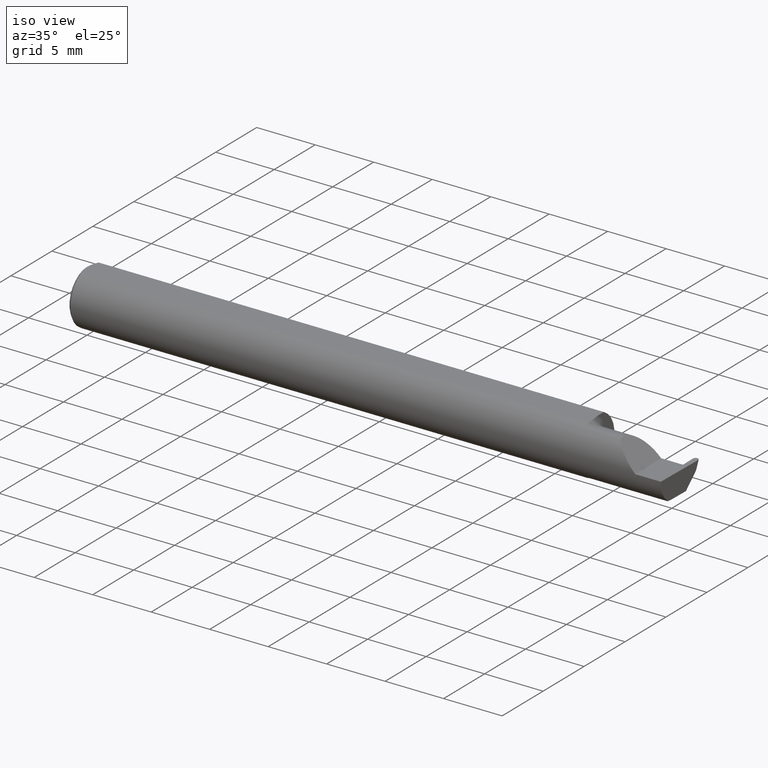
[diagram: clean part render]
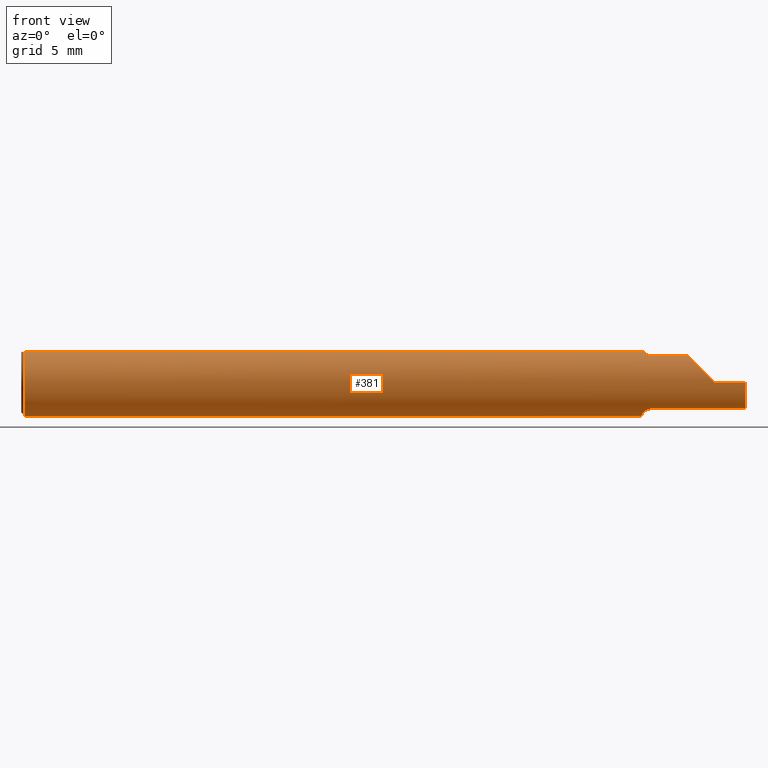
[diagram: tour spotlight — one face highlighted and labeled with its STEP entity id]
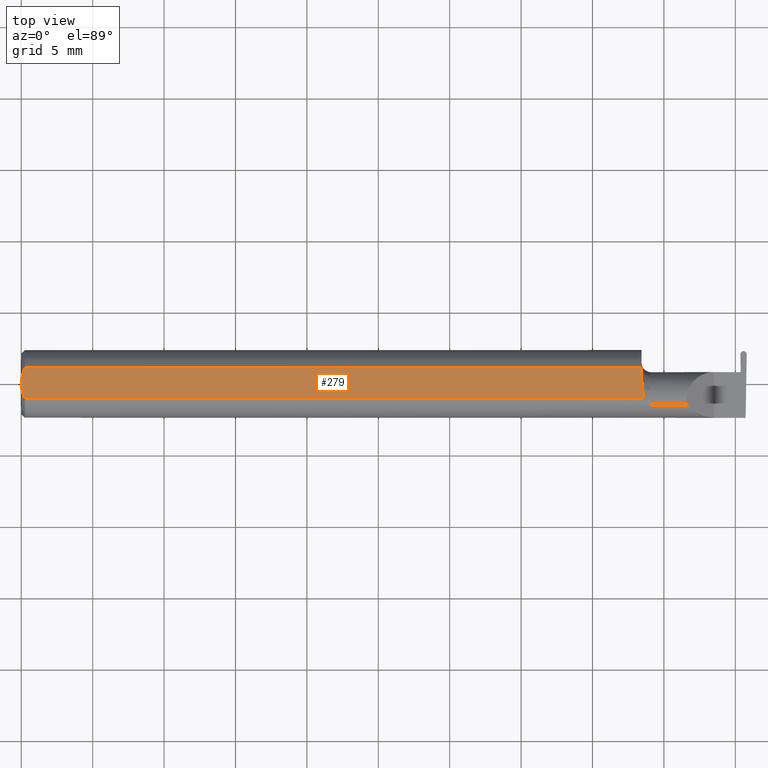
[diagram: tour spotlight — one face highlighted and labeled with its STEP entity id]
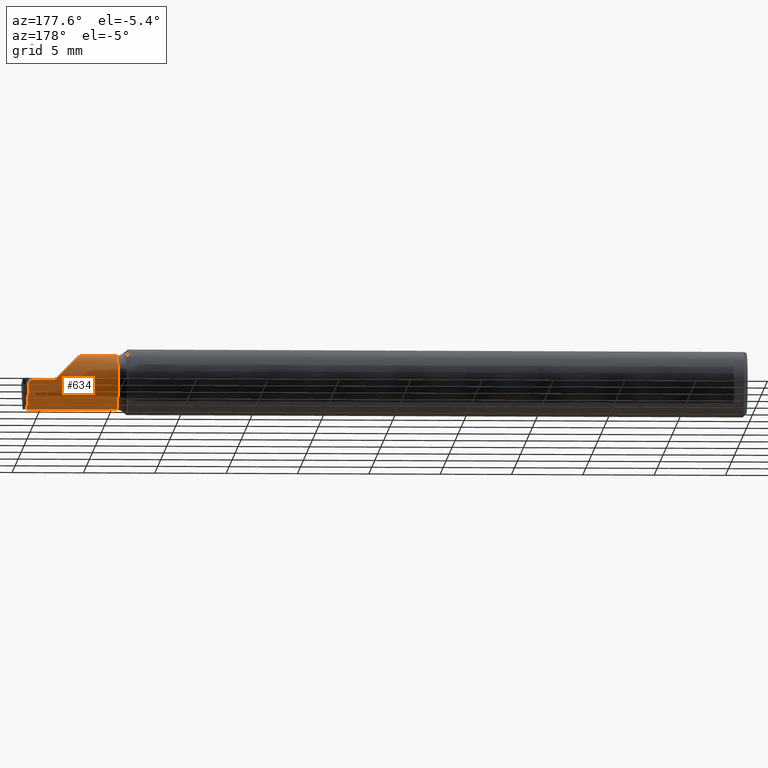
[diagram: tour spotlight — one face highlighted and labeled with its STEP entity id]
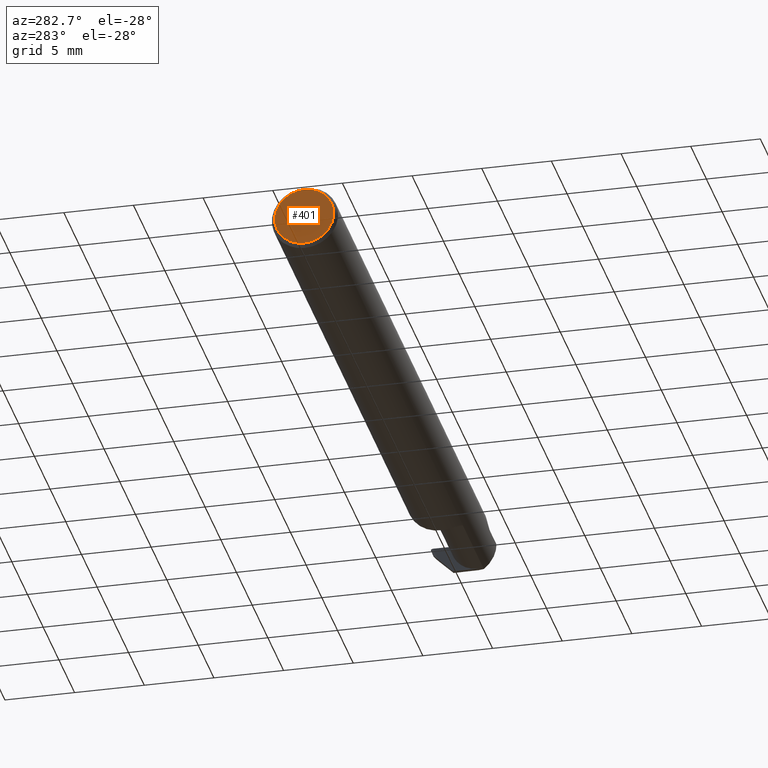
[diagram: tour spotlight — one face highlighted and labeled with its STEP entity id]
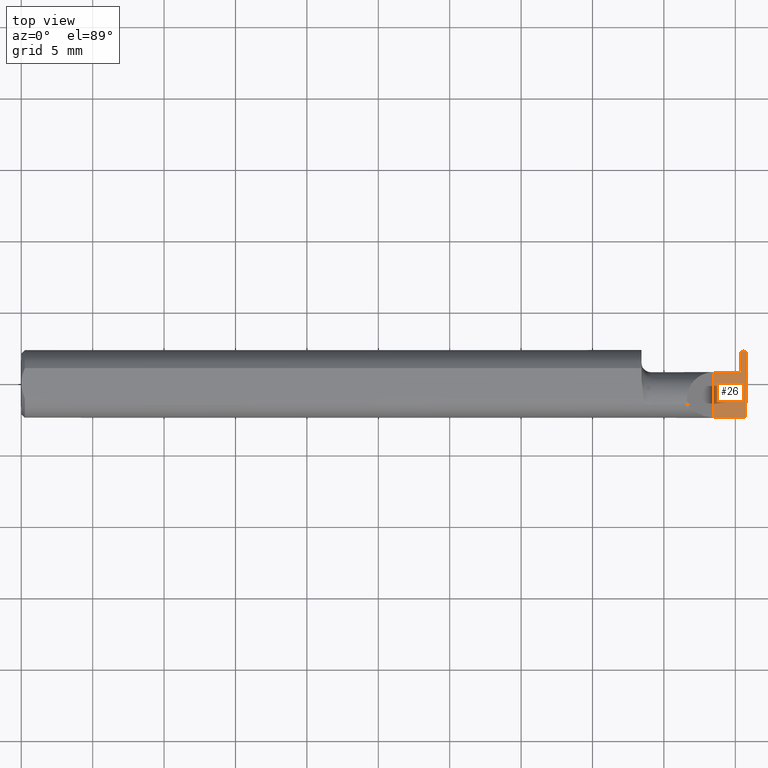
[diagram: tour spotlight — one face highlighted and labeled with its STEP entity id]
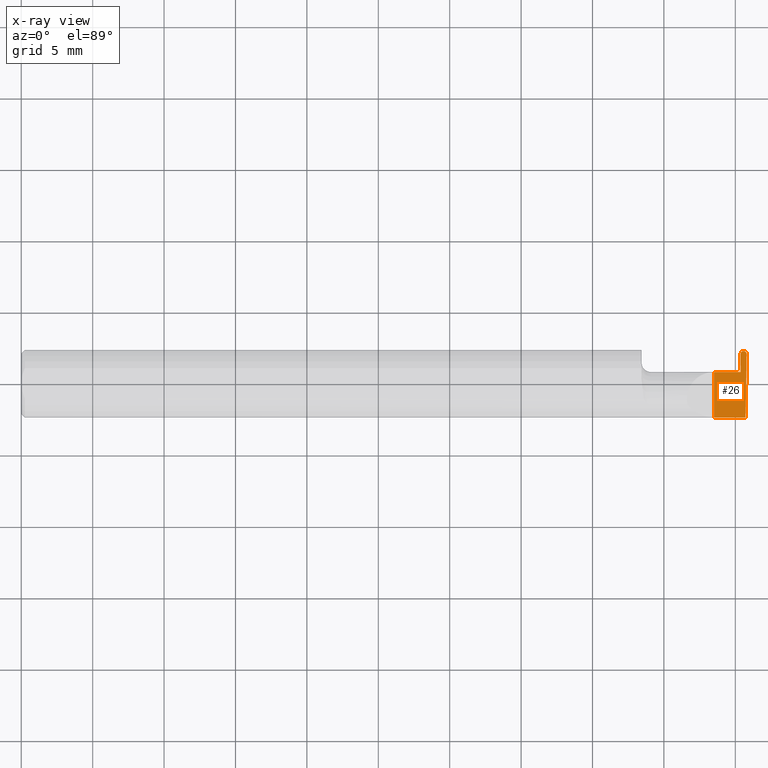
[diagram: x-ray of the same camera — body ghosted, this tour face saturated]
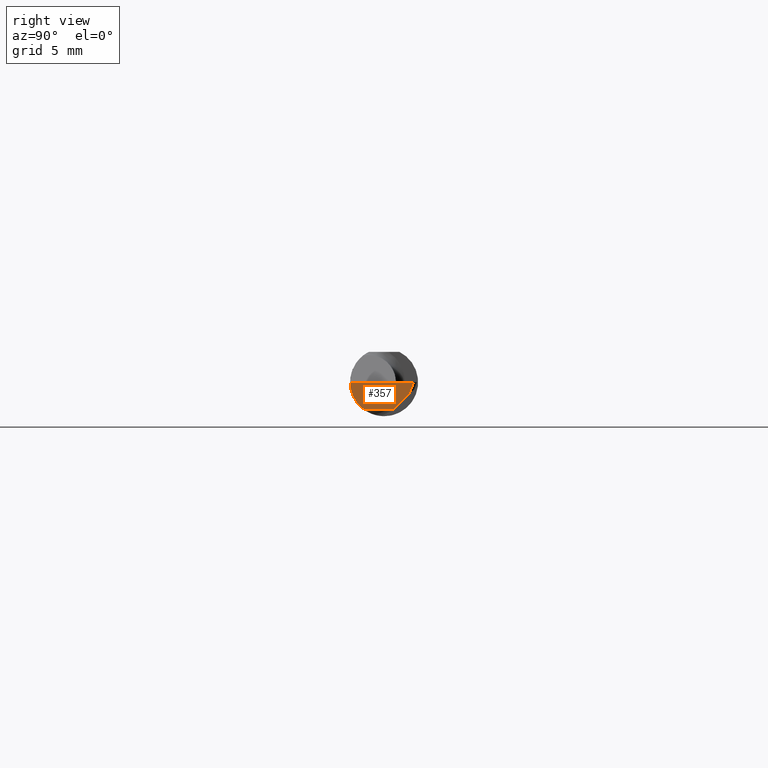
[diagram: tour spotlight — one face highlighted and labeled with its STEP entity id]
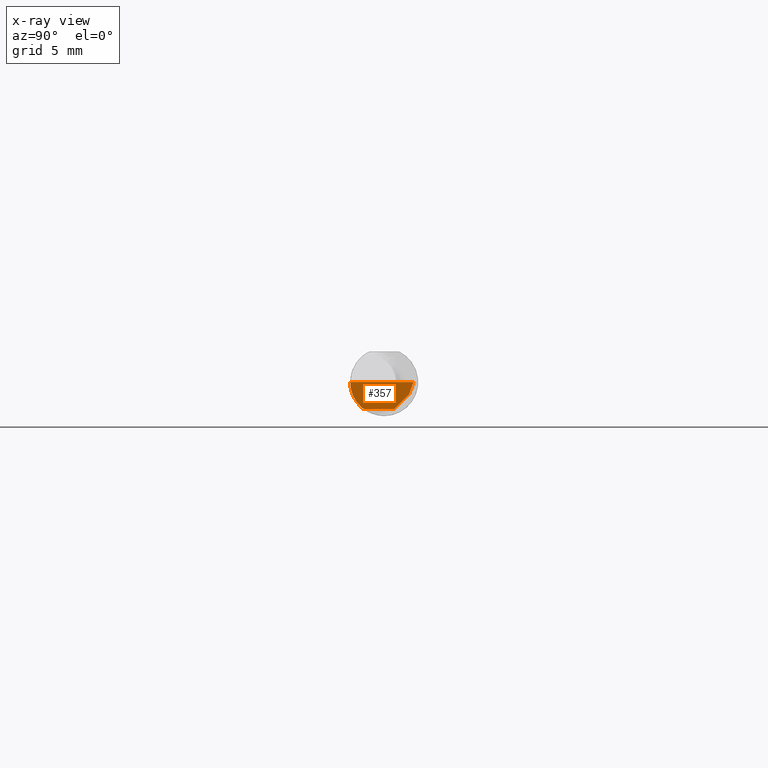
[diagram: x-ray of the same camera — body ghosted, this tour face saturated]
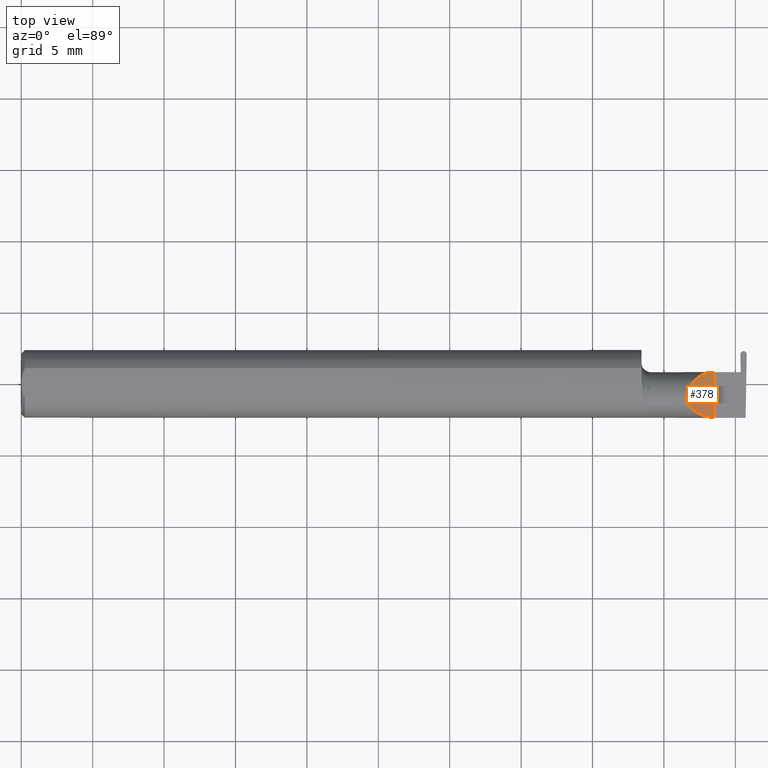
[diagram: tour spotlight — one face highlighted and labeled with its STEP entity id]
A machine part: a face-by-face anatomy tour. The part has 19 B-rep faces; the first image is the clean iso view, then the 7 largest visible faces are spotlighted one at a time (largest first), each with its STEP entity span.

Face 1 — front view, entity #381. In plain terms, the highlighted cylindrical surface (edge-blend (fillet) strip) has radius 2.3774 mm, axis along (-1, -0, -0).
Definition (entity closure, byte-faithful):
#1 = DIRECTION ( 'NONE',  ( 1.000000000000000000, 1.566532321245610297E-16, 0.000000000000000000 ) ) ;
#10 = CARTESIAN_POINT ( 'NONE',  ( 1.994999172194938941, -0.05810704225352099350, -0.07337936794867837287 ) ) ;
#13 = CARTESIAN_POINT ( 'NONE',  ( 0.000000000000000000, -0.04209513035969864037, 0.08359999999999988274 ) ) ;
#15 = CARTESIAN_POINT ( 'NONE',  ( 1.716129652885479473, -0.04209513035970120776, 0.08359999999999991049 ) ) ;
#19 = CARTESIAN_POINT ( 'NONE',  ( 0.000000000000000000, 0.04209513035969864037, 0.08359999999999988274 ) ) ;
#20 = LINE ( 'NONE', #13, #125 ) ;
#27 = CARTESIAN_POINT ( 'NONE',  ( 1.994999172194938941, -0.05810704225352099350, -0.07337936794867837287 ) ) ;
#30 = VECTOR ( 'NONE', #188, 39.37007874015748143 ) ;
#32 = VERTEX_POINT ( 'NONE', #699 ) ;
#48 = CARTESIAN_POINT ( 'NONE',  ( 0.000000000000000000, 0.000000000000000000, 0.000000000000000000 ) ) ;
#49 = ORIENTED_EDGE ( 'NONE', *, *, #583, .F. ) ;
#50 = CARTESIAN_POINT ( 'NONE',  ( 1.732603832840146074, -0.05810704225352093799, 0.07337936794867844226 ) ) ;
#56 = EDGE_CURVE ( 'NONE', #547, #32, #437, .T. ) ;
#58 = CARTESIAN_POINT ( 'NONE',  ( 1.734999999999999876, -0.05810704225352093799, 0.07337936794867844226 ) ) ;
#69 = CARTESIAN_POINT ( 'NONE',  ( 1.716129652885479473, -0.04209513035970120776, 0.08359999999999991049 ) ) ;
#77 = LINE ( 'NONE', #19, #30 ) ;
#97 = AXIS2_PLACEMENT_3D ( 'NONE', #376, #488, #592 ) ;
#98 = VERTEX_POINT ( 'NONE', #158 ) ;
#99 = CARTESIAN_POINT ( 'NONE',  ( 1.724565501274438972, -0.05415466354550829697, 0.07636456853488583774 ) ) ;
#100 = EDGE_CURVE ( 'NONE', #486, #236, #427, .T. ) ;
#103 = CARTESIAN_POINT ( 'NONE',  ( 1.718379054196076394, -0.04728090127810210402, -0.08090622725813383098 ) ) ;
#104 = CARTESIAN_POINT ( 'NONE',  ( 1.858740805000000051, -0.05810704225352100738, -0.07337936794867837287 ) ) ;
#106 = VECTOR ( 'NONE', #197, 39.37007874015748143 ) ;
#108 = EDGE_CURVE ( 'NONE', #298, #394, #179, .T. ) ;
#109 = ORIENTED_EDGE ( 'NONE', *, *, #232, .F. ) ;
#110 = EDGE_CURVE ( 'NONE', #399, #486, #656, .T. ) ;
#118 = ORIENTED_EDGE ( 'NONE', *, *, #684, .F. ) ;
#125 = VECTOR ( 'NONE', #235, 39.37007874015748143 ) ;
#144 = LINE ( 'NONE', #275, #682 ) ;
#145 = VERTEX_POINT ( 'NONE', #443 ) ;
#147 = CARTESIAN_POINT ( 'NONE',  ( 1.836620632051321200, -0.05810704225352120167, 0.07337936794867828960 ) ) ;
#158 = CARTESIAN_POINT ( 'NONE',  ( 1.734999999999999876, -0.05810704225352093799, 0.07337936794867844226 ) ) ;
#160 = DIRECTION ( 'NONE',  ( -1.000000000000000000, -0.000000000000000000, -0.000000000000000000 ) ) ;
#163 = EDGE_CURVE ( 'NONE', #547, #506, #454, .T. ) ;
#165 = VECTOR ( 'NONE', #532, 39.37007874015748143 ) ;
#170 = EDGE_LOOP ( 'NONE', ( #212, #461, #292, #187, #118, #631, #109, #628, #373, #49, #661, #289 ) ) ;
#179 = CIRCLE ( 'NONE', #533, 0.09360000000000001652 ) ;
#187 = ORIENTED_EDGE ( 'NONE', *, *, #604, .T. ) ;
#188 = DIRECTION ( 'NONE',  ( -1.000000000000000000, -0.000000000000000000, -0.000000000000000000 ) ) ;
#197 = DIRECTION ( 'NONE',  ( 1.000000000000000000, 1.566532321245610297E-16, 0.000000000000000000 ) ) ;
#212 = ORIENTED_EDGE ( 'NONE', *, *, #56, .F. ) ;
#217 = CARTESIAN_POINT ( 'NONE',  ( 1.709999999999999964, 0.000000000000000000, 0.000000000000000000 ) ) ;
#219 = CARTESIAN_POINT ( 'NONE',  ( 1.710000000000000631, -0.01220003991882276199, -0.09296180880970883464 ) ) ;
#222 = CARTESIAN_POINT ( 'NONE',  ( 1.734999999999999876, -0.05810704225352095881, -0.07337936794867842838 ) ) ;
#232 = EDGE_CURVE ( 'NONE', #399, #519, #20, .T. ) ;
#235 = DIRECTION ( 'NONE',  ( 1.000000000000000000, 0.000000000000000000, 0.000000000000000000 ) ) ;
#236 = VERTEX_POINT ( 'NONE', #501 ) ;
#243 = DIRECTION ( 'NONE',  ( 0.000000000000000000, 0.000000000000000000, 1.000000000000000000 ) ) ;
#255 = DIRECTION ( 'NONE',  ( -1.000000000000000000, -0.000000000000000000, -0.000000000000000000 ) ) ;
#260 = DIRECTION ( 'NONE',  ( 1.000000000000000000, 0.000000000000000000, 0.000000000000000000 ) ) ;
#269 = AXIS2_PLACEMENT_3D ( 'NONE', #595, #260, #483 ) ;
#273 = CARTESIAN_POINT ( 'NONE',  ( 1.709999999999999964, -0.006757276995305152960, -0.09335576686851605743 ) ) ;
#274 = B_SPLINE_CURVE_WITH_KNOTS ( 'NONE', 3,
 ( #222, #333, #539, #445, #389, #103, #324, #601, #640, #491, #219, #494 ),
 .UNSPECIFIED., .F., .F.,
 ( 4, 2, 2, 2, 2, 4 ),
 ( 1.968126669309073504E-07, 0.0002104342718631979539, 0.0004206717310594650376, 0.0008411466494519996388, 0.001261621567844533861, 0.001682096486237068516 ),
 .UNSPECIFIED. ) ;
#275 = CARTESIAN_POINT ( 'NONE',  ( 2.999519565323742037E-32, -0.09359999999999998876, 2.449293598294716768E-16 ) ) ;
#276 = CARTESIAN_POINT ( 'NONE',  ( 1.995925902212489556, -0.09360000000000001652, -0.02910696448121686056 ) ) ;
#289 = ORIENTED_EDGE ( 'NONE', *, *, #496, .F. ) ;
#292 = ORIENTED_EDGE ( 'NONE', *, *, #440, .T. ) ;
#296 = FACE_OUTER_BOUND ( 'NONE', #170, .T. ) ;
#298 = VERTEX_POINT ( 'NONE', #273 ) ;
#312 = CARTESIAN_POINT ( 'NONE',  ( 1.726308147845286634, -0.05549979236676334110, 0.07538081185522389760 ) ) ;
#315 = CARTESIAN_POINT ( 'NONE',  ( 1.996942494641693600, -0.09360000000000001652, 0.000000000000000000 ) ) ;
#322 =( BOUNDED_CURVE ( )  B_SPLINE_CURVE ( 3, ( #512, #520, #341, #564 ),
 .UNSPECIFIED., .F., .T. ) 
 B_SPLINE_CURVE_WITH_KNOTS ( ( 4, 4 ),
 ( 4.712388980384689674, 5.613420356061718408 ),
 .UNSPECIFIED. ) 
 CURVE ( )  GEOMETRIC_REPRESENTATION_ITEM ( )  RATIONAL_B_SPLINE_CURVE ( ( 1.000000000000000000, 0.9334817841311876530, 0.9334817841311876530, 1.000000000000000000 ) ) 
 REPRESENTATION_ITEM ( '' )  );
#324 = CARTESIAN_POINT ( 'NONE',  ( 1.716206319820904325, -0.04283575577410217439, -0.08338874798717357817 ) ) ;
#328 = CARTESIAN_POINT ( 'NONE',  ( 1.995231968854677351, -0.08092595952420823802, -0.05530971394246252809 ) ) ;
#333 = CARTESIAN_POINT ( 'NONE',  ( 1.732196475348975362, -0.05810704225352091717, -0.07337936794867841450 ) ) ;
#341 = CARTESIAN_POINT ( 'NONE',  ( 1.854690286057537163, -0.08092595952420827965, 0.05530971394246238931 ) ) ;
#367 = CARTESIAN_POINT ( 'NONE',  ( 1.717870098798738532, -0.04602557371825104909, 0.08162090280442949042 ) ) ;
#368 = VERTEX_POINT ( 'NONE', #147 ) ;
#369 = LINE ( 'NONE', #426, #106 ) ;
#373 = ORIENTED_EDGE ( 'NONE', *, *, #100, .T. ) ;
#376 = CARTESIAN_POINT ( 'NONE',  ( 0.01000000000000016674, 0.000000000000000000, 0.000000000000000000 ) ) ;
#381 = ADVANCED_FACE ( 'NONE', ( #296 ), #615, .T. ) ;
#383 = DIRECTION ( 'NONE',  ( 0.000000000000000000, 1.000000000000000000, 0.000000000000000000 ) ) ;
#389 = CARTESIAN_POINT ( 'NONE',  ( 1.723195691242755734, -0.05295078397730230285, -0.07721567059148477796 ) ) ;
#394 = VERTEX_POINT ( 'NONE', #471 ) ;
#399 = VERTEX_POINT ( 'NONE', #678 ) ;
#426 = CARTESIAN_POINT ( 'NONE',  ( 1.858740805000000051, -0.05810704225352100738, 0.07337936794867837287 ) ) ;
#427 = CIRCLE ( 'NONE', #97, 0.09360000000000001652 ) ;
#437 = LINE ( 'NONE', #104, #165 ) ;
#440 = EDGE_CURVE ( 'NONE', #506, #145, #144, .T. ) ;
#443 = CARTESIAN_POINT ( 'NONE',  ( 1.910000000000000142, -0.09360000000000005815, 1.102182119232621301E-17 ) ) ;
#445 = CARTESIAN_POINT ( 'NONE',  ( 1.725047675231717426, -0.05464443219068142871, -0.07601042893068209183 ) ) ;
#454 =( BOUNDED_CURVE ( )  B_SPLINE_CURVE ( 3, ( #10, #328, #276, #606 ),
 .UNSPECIFIED., .F., .T. ) 
 B_SPLINE_CURVE_WITH_KNOTS ( ( 4, 4 ),
 ( 0.2063001339125299927, 1.107331509589561058 ),
 .UNSPECIFIED. ) 
 CURVE ( )  GEOMETRIC_REPRESENTATION_ITEM ( )  RATIONAL_B_SPLINE_CURVE ( ( 1.000000000000000000, 0.9334817841311872089, 0.9334817841311872089, 1.000000000000000000 ) ) 
 REPRESENTATION_ITEM ( '' )  );
#461 = ORIENTED_EDGE ( 'NONE', *, *, #163, .T. ) ;
#471 = CARTESIAN_POINT ( 'NONE',  ( 1.709999999999999964, 0.04209513035969864037, 0.08359999999999988274 ) ) ;
#483 = DIRECTION ( 'NONE',  ( 0.000000000000000000, 0.000000000000000000, -1.000000000000000000 ) ) ;
#486 = VERTEX_POINT ( 'NONE', #497 ) ;
#488 = DIRECTION ( 'NONE',  ( 1.000000000000000000, 0.000000000000000000, 0.000000000000000000 ) ) ;
#491 = CARTESIAN_POINT ( 'NONE',  ( 1.710323329158491390, -0.01767221859896409702, -0.09207639555340685344 ) ) ;
#494 = CARTESIAN_POINT ( 'NONE',  ( 1.709999999999999964, -0.006757276995305152960, -0.09335576686851605743 ) ) ;
#496 = EDGE_CURVE ( 'NONE', #32, #298, #274, .T. ) ;
#497 = CARTESIAN_POINT ( 'NONE',  ( 0.01000000000000016674, 0.000000000000000000, -0.09360000000000001652 ) ) ;
#501 = CARTESIAN_POINT ( 'NONE',  ( 0.01000000000000016674, 0.04209513035969864037, 0.08359999999999988274 ) ) ;
#506 = VERTEX_POINT ( 'NONE', #315 ) ;
#512 = CARTESIAN_POINT ( 'NONE',  ( 1.910000000000000142, -0.09360000000000005815, 1.102182119232621301E-17 ) ) ;
#514 = AXIS2_PLACEMENT_3D ( 'NONE', #48, #255, #243 ) ;
#519 = VERTEX_POINT ( 'NONE', #69 ) ;
#520 = CARTESIAN_POINT ( 'NONE',  ( 1.880893035518783396, -0.09360000000000001652, 0.02910696448121676688 ) ) ;
#527 = EDGE_CURVE ( 'NONE', #519, #98, #655, .T. ) ;
#529 = CARTESIAN_POINT ( 'NONE',  ( 1.730292432600753827, -0.05747478081012615675, 0.07388601572377859195 ) ) ;
#532 = DIRECTION ( 'NONE',  ( -1.000000000000000000, -1.566532321245610297E-16, -0.000000000000000000 ) ) ;
#533 = AXIS2_PLACEMENT_3D ( 'NONE', #217, #1, #383 ) ;
#539 = CARTESIAN_POINT ( 'NONE',  ( 1.729541435880793898, -0.05724930034136783974, -0.07406832579512054315 ) ) ;
#547 = VERTEX_POINT ( 'NONE', #27 ) ;
#564 = CARTESIAN_POINT ( 'NONE',  ( 1.836620632051321200, -0.05810704225352120167, 0.07337936794867828960 ) ) ;
#580 = CARTESIAN_POINT ( 'NONE',  ( 1.720033121973953083, -0.04963861219531606056, 0.07943694244057658560 ) ) ;
#583 = EDGE_CURVE ( 'NONE', #394, #236, #77, .T. ) ;
#592 = DIRECTION ( 'NONE',  ( 0.000000000000000000, 0.000000000000000000, -1.000000000000000000 ) ) ;
#595 = CARTESIAN_POINT ( 'NONE',  ( 0.01000000000000016674, 0.000000000000000000, 0.000000000000000000 ) ) ;
#601 = CARTESIAN_POINT ( 'NONE',  ( 1.712856118429613606, -0.03323074941465632010, -0.08766015375840494062 ) ) ;
#604 = EDGE_CURVE ( 'NONE', #145, #368, #322, .T. ) ;
#606 = CARTESIAN_POINT ( 'NONE',  ( 1.996942494641693600, -0.09360000000000001652, 0.000000000000000000 ) ) ;
#615 = CYLINDRICAL_SURFACE ( 'NONE', #514, 0.09360000000000001652 ) ;
#628 = ORIENTED_EDGE ( 'NONE', *, *, #110, .T. ) ;
#631 = ORIENTED_EDGE ( 'NONE', *, *, #527, .F. ) ;
#640 = CARTESIAN_POINT ( 'NONE',  ( 1.711762116932663558, -0.02818790137206257304, -0.08941930521177117452 ) ) ;
#655 = B_SPLINE_CURVE_WITH_KNOTS ( 'NONE', 3,
 ( #15, #367, #580, #99, #312, #529, #50, #58 ),
 .UNSPECIFIED., .F., .F.,
 ( 4, 2, 2, 4 ),
 ( 4.741820243504350648E-07, 0.0003579866703973729478, 0.0005367429145838904922, 0.0007154991587704081450 ),
 .UNSPECIFIED. ) ;
#656 = CIRCLE ( 'NONE', #269, 0.09360000000000001652 ) ;
#661 = ORIENTED_EDGE ( 'NONE', *, *, #108, .F. ) ;
#678 = CARTESIAN_POINT ( 'NONE',  ( 0.01000000000000016674, -0.04209513035969864037, 0.08359999999999988274 ) ) ;
#682 = VECTOR ( 'NONE', #160, 39.37007874015748143 ) ;
#684 = EDGE_CURVE ( 'NONE', #98, #368, #369, .T. ) ;
#699 = CARTESIAN_POINT ( 'NONE',  ( 1.734999999999999876, -0.05810704225352095881, -0.07337936794867842838 ) ) ;

Face 2 — top view, entity #279. In plain terms, the highlighted planar face has unit normal (0, 0, 1).
Definition (entity closure, byte-faithful):
#6 = CARTESIAN_POINT ( 'NONE',  ( 1.709999999999999964, 0.01227294415283377085, 0.08359999999999991049 ) ) ;
#13 = CARTESIAN_POINT ( 'NONE',  ( 0.000000000000000000, -0.04209513035969864037, 0.08359999999999988274 ) ) ;
#19 = CARTESIAN_POINT ( 'NONE',  ( 0.000000000000000000, 0.04209513035969864037, 0.08359999999999988274 ) ) ;
#20 = LINE ( 'NONE', #13, #125 ) ;
#22 = ORIENTED_EDGE ( 'NONE', *, *, #59, .T. ) ;
#24 = FACE_OUTER_BOUND ( 'NONE', #25, .T. ) ;
#25 = EDGE_LOOP ( 'NONE', ( #573, #391, #22, #355, #408, #46 ) ) ;
#30 = VECTOR ( 'NONE', #188, 39.37007874015748143 ) ;
#34 = CARTESIAN_POINT ( 'NONE',  ( 0.004072204388638868758, -0.02891446873729324601, 0.08359999999999991049 ) ) ;
#46 = ORIENTED_EDGE ( 'NONE', *, *, #552, .F. ) ;
#59 = EDGE_CURVE ( 'NONE', #89, #394, #493, .T. ) ;
#69 = CARTESIAN_POINT ( 'NONE',  ( 1.716129652885479473, -0.04209513035970120776, 0.08359999999999991049 ) ) ;
#72 = AXIS2_PLACEMENT_3D ( 'NONE', #176, #459, #671 ) ;
#75 = PLANE ( 'NONE',  #72 ) ;
#77 = LINE ( 'NONE', #19, #30 ) ;
#89 = VERTEX_POINT ( 'NONE', #6 ) ;
#125 = VECTOR ( 'NONE', #235, 39.37007874015748143 ) ;
#126 = CARTESIAN_POINT ( 'NONE',  ( 2.476070721796526867E-17, 0.007317304829308955878, 0.08359999999999991049 ) ) ;
#135 = CARTESIAN_POINT ( 'NONE',  ( 0.000000000000000000, 0.000000000000000000, 0.08359999999999991049 ) ) ;
#161 = CARTESIAN_POINT ( 'NONE',  ( 1.709999999999999964, 0.09359999999999998876, 0.08359999999999991049 ) ) ;
#176 = CARTESIAN_POINT ( 'NONE',  ( 2.191425808082400728, 0.09360000000000005815, 0.08359999999999991049 ) ) ;
#188 = DIRECTION ( 'NONE',  ( -1.000000000000000000, -0.000000000000000000, -0.000000000000000000 ) ) ;
#190 = EDGE_CURVE ( 'NONE', #519, #89, #406, .T. ) ;
#220 = CARTESIAN_POINT ( 'NONE',  ( 1.711463898467977307, -0.005727447913487254683, 0.08359999999999991049 ) ) ;
#232 = EDGE_CURVE ( 'NONE', #399, #519, #20, .T. ) ;
#234 = CARTESIAN_POINT ( 'NONE',  ( 0.000000000000000000, 0.000000000000000000, 0.08359999999999991049 ) ) ;
#235 = DIRECTION ( 'NONE',  ( 1.000000000000000000, 0.000000000000000000, 0.000000000000000000 ) ) ;
#236 = VERTEX_POINT ( 'NONE', #501 ) ;
#237 = CARTESIAN_POINT ( 'NONE',  ( 0.004492168231814808177, 0.02859366993844194779, 0.08359999999999991049 ) ) ;
#279 = ADVANCED_FACE ( 'NONE', ( #24 ), #75, .T. ) ;
#311 = B_SPLINE_CURVE_WITH_KNOTS ( 'NONE', 3,
 ( #404, #34, #467, #451 ),
 .UNSPECIFIED., .F., .F.,
 ( 4, 4 ),
 ( 0.0006429768761302093617, 0.001744210492668864416 ),
 .UNSPECIFIED. ) ;
#323 = DIRECTION ( 'NONE',  ( -1.566532321245610297E-16, 1.000000000000000000, 0.000000000000000000 ) ) ;
#325 = B_SPLINE_CURVE_WITH_KNOTS ( 'NONE', 3,
 ( #135, #126, #400, #237, #621, #561 ),
 .UNSPECIFIED., .F., .F.,
 ( 4, 2, 4 ),
 ( 0.001744210492668864416, 0.002295110172257193264, 0.002846009851845522111 ),
 .UNSPECIFIED. ) ;
#338 = CARTESIAN_POINT ( 'NONE',  ( 1.709999999999999964, 0.01227294415283377085, 0.08359999999999991049 ) ) ;
#355 = ORIENTED_EDGE ( 'NONE', *, *, #583, .T. ) ;
#387 = CARTESIAN_POINT ( 'NONE',  ( 1.714570820222980574, -0.02392027542784322738, 0.08359999999999992437 ) ) ;
#391 = ORIENTED_EDGE ( 'NONE', *, *, #190, .T. ) ;
#394 = VERTEX_POINT ( 'NONE', #471 ) ;
#397 = VECTOR ( 'NONE', #323, 39.37007874015748143 ) ;
#399 = VERTEX_POINT ( 'NONE', #678 ) ;
#400 = CARTESIAN_POINT ( 'NONE',  ( 0.0009807498324118613890, 0.01453516766257752398, 0.08359999999999992437 ) ) ;
#404 = CARTESIAN_POINT ( 'NONE',  ( 0.01000000000000016674, -0.04209513035969864037, 0.08359999999999988274 ) ) ;
#406 = B_SPLINE_CURVE_WITH_KNOTS ( 'NONE', 3,
 ( #495, #452, #387, #220, #448, #338 ),
 .UNSPECIFIED., .F., .F.,
 ( 4, 2, 4 ),
 ( 0.009672910729349552816, 0.01035804079918432180, 0.01104317086901909252 ),
 .UNSPECIFIED. ) ;
#408 = ORIENTED_EDGE ( 'NONE', *, *, #575, .F. ) ;
#448 = CARTESIAN_POINT ( 'NONE',  ( 1.709999999999999964, 0.003280657920457338145, 0.08359999999999991049 ) ) ;
#451 = CARTESIAN_POINT ( 'NONE',  ( 0.000000000000000000, 0.000000000000000000, 0.08359999999999991049 ) ) ;
#452 = CARTESIAN_POINT ( 'NONE',  ( 1.716082007218903582, -0.03301619840524121219, 0.08359999999999991049 ) ) ;
#459 = DIRECTION ( 'NONE',  ( 0.000000000000000000, 0.000000000000000000, 1.000000000000000000 ) ) ;
#467 = CARTESIAN_POINT ( 'NONE',  ( 2.387527623501553705E-17, -0.01462709520273675068, 0.08359999999999991049 ) ) ;
#471 = CARTESIAN_POINT ( 'NONE',  ( 1.709999999999999964, 0.04209513035969864037, 0.08359999999999988274 ) ) ;
#493 = LINE ( 'NONE', #161, #397 ) ;
#495 = CARTESIAN_POINT ( 'NONE',  ( 1.716129652885479473, -0.04209513035970120776, 0.08359999999999991049 ) ) ;
#501 = CARTESIAN_POINT ( 'NONE',  ( 0.01000000000000016674, 0.04209513035969864037, 0.08359999999999988274 ) ) ;
#519 = VERTEX_POINT ( 'NONE', #69 ) ;
#552 = EDGE_CURVE ( 'NONE', #399, #643, #311, .T. ) ;
#561 = CARTESIAN_POINT ( 'NONE',  ( 0.01000000000000016674, 0.04209513035969864037, 0.08359999999999988274 ) ) ;
#573 = ORIENTED_EDGE ( 'NONE', *, *, #232, .T. ) ;
#575 = EDGE_CURVE ( 'NONE', #643, #236, #325, .T. ) ;
#583 = EDGE_CURVE ( 'NONE', #394, #236, #77, .T. ) ;
#621 = CARTESIAN_POINT ( 'NONE',  ( 0.007036739039485840133, 0.03550621559607060329, 0.08359999999999991049 ) ) ;
#643 = VERTEX_POINT ( 'NONE', #234 ) ;
#671 = DIRECTION ( 'NONE',  ( 1.000000000000000000, 0.000000000000000000, -0.000000000000000000 ) ) ;
#678 = CARTESIAN_POINT ( 'NONE',  ( 0.01000000000000016674, -0.04209513035969864037, 0.08359999999999988274 ) ) ;

Face 3 — auxiliary view, entity #634. In plain terms, the highlighted cylindrical surface (edge-blend (fillet) strip) has radius 1.905 mm, axis along (-1, -0, -0).
Definition (entity closure, byte-faithful):
#5 = CARTESIAN_POINT ( 'NONE',  ( 1.995050583981878400, -0.05300374992736034407, -0.07445783144524582842 ) ) ;
#12 = CARTESIAN_POINT ( 'NONE',  ( 1.977327383411515482, 0.03239999999999999825, 0.000000000000000000 ) ) ;
#23 = CYLINDRICAL_SURFACE ( 'NONE', #516, 0.07500000000000006661 ) ;
#27 = CARTESIAN_POINT ( 'NONE',  ( 1.994999172194938941, -0.05810704225352099350, -0.07337936794867837287 ) ) ;
#28 = VECTOR ( 'NONE', #557, 39.37007874015748143 ) ;
#32 = VERTEX_POINT ( 'NONE', #699 ) ;
#37 = VERTEX_POINT ( 'NONE', #379 ) ;
#38 = DIRECTION ( 'NONE',  ( 1.000000000000000000, 1.566532321245610297E-16, 0.000000000000000000 ) ) ;
#56 = EDGE_CURVE ( 'NONE', #547, #32, #437, .T. ) ;
#64 =( BOUNDED_CURVE ( )  B_SPLINE_CURVE ( 3, ( #659, #169, #78, #390 ),
 .UNSPECIFIED., .F., .T. ) 
 B_SPLINE_CURVE_WITH_KNOTS ( ( 4, 4 ),
 ( 6.074922494366329140, 7.853981633974482790 ),
 .UNSPECIFIED. ) 
 CURVE ( )  GEOMETRIC_REPRESENTATION_ITEM ( )  RATIONAL_B_SPLINE_CURVE ( ( 1.000000000000000000, 0.7531850099525143616, 0.7531850099525143616, 1.000000000000000000 ) ) 
 REPRESENTATION_ITEM ( '' )  );
#71 = ORIENTED_EDGE ( 'NONE', *, *, #174, .F. ) ;
#78 = CARTESIAN_POINT ( 'NONE',  ( 1.858433946715231766, 0.03240000000000000518, 0.05156605328476855654 ) ) ;
#98 = VERTEX_POINT ( 'NONE', #158 ) ;
#104 = CARTESIAN_POINT ( 'NONE',  ( 1.858740805000000051, -0.05810704225352100738, -0.07337936794867837287 ) ) ;
#106 = VECTOR ( 'NONE', #197, 39.37007874015748143 ) ;
#115 = CARTESIAN_POINT ( 'NONE',  ( 1.983525690212190273, 0.03221730376948681029, -0.005231735530809572890 ) ) ;
#120 = LINE ( 'NONE', #653, #28 ) ;
#128 = EDGE_CURVE ( 'NONE', #368, #37, #64, .T. ) ;
#134 = ORIENTED_EDGE ( 'NONE', *, *, #684, .T. ) ;
#147 = CARTESIAN_POINT ( 'NONE',  ( 1.836620632051321200, -0.05810704225352120167, 0.07337936794867828960 ) ) ;
#148 = ORIENTED_EDGE ( 'NONE', *, *, #462, .F. ) ;
#153 = CARTESIAN_POINT ( 'NONE',  ( 1.977327383411515482, 0.03239999999999999825, 0.000000000000000000 ) ) ;
#158 = CARTESIAN_POINT ( 'NONE',  ( 1.734999999999999876, -0.05810704225352093799, 0.07337936794867844226 ) ) ;
#165 = VECTOR ( 'NONE', #532, 39.37007874015748143 ) ;
#169 = CARTESIAN_POINT ( 'NONE',  ( 1.825958805822864628, -0.007655250284932180876, 0.08404119417713470930 ) ) ;
#171 = CARTESIAN_POINT ( 'NONE',  ( 1.709999999999999964, -0.04260000000000008225, 0.000000000000000000 ) ) ;
#174 = EDGE_CURVE ( 'NONE', #444, #550, #120, .T. ) ;
#175 = CARTESIAN_POINT ( 'NONE',  ( 1.986094660071884288, -0.04260000000000003367, -0.07500000000000003886 ) ) ;
#197 = DIRECTION ( 'NONE',  ( 1.000000000000000000, 1.566532321245610297E-16, 0.000000000000000000 ) ) ;
#204 = CARTESIAN_POINT ( 'NONE',  ( 1.709999999999999964, 0.03239999999999998437, 3.551475717527338624E-17 ) ) ;
#209 = CARTESIAN_POINT ( 'NONE',  ( 1.994999172194938941, -0.05810704225352099350, -0.07337936794867837287 ) ) ;
#216 = CARTESIAN_POINT ( 'NONE',  ( 1.986094660071884288, -0.04260000000000003367, -0.07500000000000003886 ) ) ;
#240 = ORIENTED_EDGE ( 'NONE', *, *, #446, .F. ) ;
#278 = CARTESIAN_POINT ( 'NONE',  ( 1.977144687181002114, 0.03221730376948677560, -0.005231735530810520049 ) ) ;
#281 = CIRCLE ( 'NONE', #306, 0.07500000000000010825 ) ;
#282 = ORIENTED_EDGE ( 'NONE', *, *, #438, .F. ) ;
#290 = LINE ( 'NONE', #204, #610 ) ;
#301 = ORIENTED_EDGE ( 'NONE', *, *, #505, .F. ) ;
#304 = VERTEX_POINT ( 'NONE', #405 ) ;
#306 = AXIS2_PLACEMENT_3D ( 'NONE', #681, #416, #627 ) ;
#330 = LINE ( 'NONE', #384, #374 ) ;
#364 = ORIENTED_EDGE ( 'NONE', *, *, #56, .T. ) ;
#368 = VERTEX_POINT ( 'NONE', #147 ) ;
#369 = LINE ( 'NONE', #426, #106 ) ;
#374 = VECTOR ( 'NONE', #442, 39.37007874015748143 ) ;
#379 = CARTESIAN_POINT ( 'NONE',  ( 1.910000000000000142, 0.03240000000000001212, 3.551475717527338624E-17 ) ) ;
#384 = CARTESIAN_POINT ( 'NONE',  ( 2.115884466375952844, -0.04259999999999949938, -0.07500000000000002498 ) ) ;
#390 = CARTESIAN_POINT ( 'NONE',  ( 1.910000000000000142, 0.03240000000000001212, 3.551475717527338624E-17 ) ) ;
#405 = CARTESIAN_POINT ( 'NONE',  ( 1.995213246285213016, -0.04259999999999949938, -0.07500000000000002498 ) ) ;
#416 = DIRECTION ( 'NONE',  ( -1.000000000000000000, -1.566532321245610297E-16, -0.000000000000000000 ) ) ;
#426 = CARTESIAN_POINT ( 'NONE',  ( 1.858740805000000051, -0.05810704225352100738, 0.07337936794867837287 ) ) ;
#431 =( BOUNDED_CURVE ( )  B_SPLINE_CURVE ( 3, ( #216, #593, #635, #115 ),
 .UNSPECIFIED., .F., .T. ) 
 B_SPLINE_CURVE_WITH_KNOTS ( ( 4, 4 ),
 ( 3.176499238629675315, 4.677482395344796373 ),
 .UNSPECIFIED. ) 
 CURVE ( )  GEOMETRIC_REPRESENTATION_ITEM ( )  RATIONAL_B_SPLINE_CURVE ( ( 1.000000000000000000, 0.8209024677461141950, 0.8209024677461141950, 1.000000000000000000 ) ) 
 REPRESENTATION_ITEM ( '' )  );
#432 = CARTESIAN_POINT ( 'NONE',  ( 1.983525690212190273, 0.03221730376948681029, -0.005231735530809572890 ) ) ;
#437 = LINE ( 'NONE', #104, #165 ) ;
#438 = EDGE_CURVE ( 'NONE', #98, #32, #281, .T. ) ;
#441 = VERTEX_POINT ( 'NONE', #12 ) ;
#442 = DIRECTION ( 'NONE',  ( -1.000000000000000000, -0.000000000000000000, -0.000000000000000000 ) ) ;
#444 = VERTEX_POINT ( 'NONE', #432 ) ;
#446 = EDGE_CURVE ( 'NONE', #304, #560, #330, .T. ) ;
#450 =( BOUNDED_CURVE ( )  B_SPLINE_CURVE ( 3, ( #209, #5, #617, #503 ),
 .UNSPECIFIED., .F., .F. ) 
 B_SPLINE_CURVE_WITH_KNOTS ( ( 4, 4 ),
 ( 0.2552020043920849579, 0.4634648172053463799 ),
 .UNSPECIFIED. ) 
 CURVE ( )  GEOMETRIC_REPRESENTATION_ITEM ( )  RATIONAL_B_SPLINE_CURVE ( ( 1.000000000000000000, 0.9963888149483992596, 0.9963888149483992596, 1.000000000000000000 ) ) 
 REPRESENTATION_ITEM ( '' )  );
#453 = ORIENTED_EDGE ( 'NONE', *, *, #128, .T. ) ;
#462 = EDGE_CURVE ( 'NONE', #560, #444, #431, .T. ) ;
#503 = CARTESIAN_POINT ( 'NONE',  ( 1.995213246285213016, -0.04259999999999949938, -0.07500000000000002498 ) ) ;
#505 = EDGE_CURVE ( 'NONE', #550, #441, #695, .T. ) ;
#507 = FACE_OUTER_BOUND ( 'NONE', #625, .T. ) ;
#511 = ORIENTED_EDGE ( 'NONE', *, *, #665, .T. ) ;
#516 = AXIS2_PLACEMENT_3D ( 'NONE', #171, #605, #556 ) ;
#517 = CARTESIAN_POINT ( 'NONE',  ( 1.977144687181002114, 0.03221730376948677560, -0.005231735530810520049 ) ) ;
#531 = EDGE_CURVE ( 'NONE', #547, #304, #450, .T. ) ;
#532 = DIRECTION ( 'NONE',  ( -1.000000000000000000, -1.566532321245610297E-16, -0.000000000000000000 ) ) ;
#547 = VERTEX_POINT ( 'NONE', #27 ) ;
#550 = VERTEX_POINT ( 'NONE', #517 ) ;
#556 = DIRECTION ( 'NONE',  ( 0.000000000000000000, -1.000000000000000000, 0.000000000000000000 ) ) ;
#557 = DIRECTION ( 'NONE',  ( -1.000000000000000000, -1.566532321245610297E-16, -0.000000000000000000 ) ) ;
#560 = VERTEX_POINT ( 'NONE', #175 ) ;
#593 = CARTESIAN_POINT ( 'NONE',  ( 1.986043175114837744, -0.001060451341131591740, -0.07500000000000008049 ) ) ;
#605 = DIRECTION ( 'NONE',  ( -1.000000000000000000, -1.566532321245610297E-16, -0.000000000000000000 ) ) ;
#610 = VECTOR ( 'NONE', #38, 39.37007874015748143 ) ;
#617 = CARTESIAN_POINT ( 'NONE',  ( 1.995122200632949427, -0.04781600192481493677, -0.07500000000000009437 ) ) ;
#625 = EDGE_LOOP ( 'NONE', ( #364, #282, #134, #453, #511, #301, #71, #148, #240, #636 ) ) ;
#627 = DIRECTION ( 'NONE',  ( 0.000000000000000000, -1.000000000000000000, 0.000000000000000000 ) ) ;
#634 = ADVANCED_FACE ( 'NONE', ( #507 ), #23, .T. ) ;
#635 = CARTESIAN_POINT ( 'NONE',  ( 1.985000026482436342, 0.02931965133412156588, -0.04667009593691545666 ) ) ;
#636 = ORIENTED_EDGE ( 'NONE', *, *, #531, .F. ) ;
#650 = CARTESIAN_POINT ( 'NONE',  ( 1.977266484668010804, 0.03233910125649558376, -0.001743911843603509213 ) ) ;
#653 = CARTESIAN_POINT ( 'NONE',  ( 1.709999999999999964, 0.03221730376948681029, -0.005231735530809449725 ) ) ;
#659 = CARTESIAN_POINT ( 'NONE',  ( 1.836620632051321200, -0.05810704225352120167, 0.07337936794867828960 ) ) ;
#665 = EDGE_CURVE ( 'NONE', #37, #441, #290, .T. ) ;
#681 = CARTESIAN_POINT ( 'NONE',  ( 1.734999999999999876, -0.04260000000000008225, 0.000000000000000000 ) ) ;
#684 = EDGE_CURVE ( 'NONE', #98, #368, #369, .T. ) ;
#694 = CARTESIAN_POINT ( 'NONE',  ( 1.977205585924506570, 0.03227820251299118315, -0.003487823687207018859 ) ) ;
#695 = B_SPLINE_CURVE_WITH_KNOTS ( 'NONE', 3,
 ( #278, #694, #650, #153 ),
 .UNSPECIFIED., .F., .F.,
 ( 4, 4 ),
 ( 0.000000000000000000, 1.000000000000000000 ),
 .UNSPECIFIED. ) ;
#699 = CARTESIAN_POINT ( 'NONE',  ( 1.734999999999999876, -0.05810704225352095881, -0.07337936794867842838 ) ) ;

Face 4 — auxiliary view, entity #401. In plain terms, the highlighted planar face has unit normal (1, 0, 0).
Definition (entity closure, byte-faithful):
#86 = AXIS2_PLACEMENT_3D ( 'NONE', #345, #562, #410 ) ;
#180 = DIRECTION ( 'NONE',  ( 0.000000000000000000, 0.000000000000000000, -1.000000000000000000 ) ) ;
#189 = FACE_OUTER_BOUND ( 'NONE', #591, .T. ) ;
#213 = AXIS2_PLACEMENT_3D ( 'NONE', #504, #599, #223 ) ;
#223 = DIRECTION ( 'NONE',  ( 0.000000000000000000, 0.000000000000000000, -1.000000000000000000 ) ) ;
#234 = CARTESIAN_POINT ( 'NONE',  ( 0.000000000000000000, 0.000000000000000000, 0.08359999999999991049 ) ) ;
#238 = CARTESIAN_POINT ( 'NONE',  ( 0.000000000000000000, 0.000000000000000000, -0.08359999999999989662 ) ) ;
#242 = EDGE_CURVE ( 'NONE', #309, #643, #326, .T. ) ;
#309 = VERTEX_POINT ( 'NONE', #238 ) ;
#326 = CIRCLE ( 'NONE', #213, 0.08359999999999989662 ) ;
#345 = CARTESIAN_POINT ( 'NONE',  ( 0.000000000000000000, 0.000000000000000000, 0.000000000000000000 ) ) ;
#401 = ADVANCED_FACE ( 'NONE', ( #189 ), #569, .F. ) ;
#409 = DIRECTION ( 'NONE',  ( -1.000000000000000000, -0.000000000000000000, -0.000000000000000000 ) ) ;
#410 = DIRECTION ( 'NONE',  ( 0.000000000000000000, 0.000000000000000000, -1.000000000000000000 ) ) ;
#414 = CIRCLE ( 'NONE', #484, 0.08359999999999989662 ) ;
#466 = ORIENTED_EDGE ( 'NONE', *, *, #242, .T. ) ;
#473 = ORIENTED_EDGE ( 'NONE', *, *, #642, .T. ) ;
#484 = AXIS2_PLACEMENT_3D ( 'NONE', #673, #409, #180 ) ;
#504 = CARTESIAN_POINT ( 'NONE',  ( 0.000000000000000000, 0.000000000000000000, 0.000000000000000000 ) ) ;
#562 = DIRECTION ( 'NONE',  ( 1.000000000000000000, 0.000000000000000000, 0.000000000000000000 ) ) ;
#569 = PLANE ( 'NONE',  #86 ) ;
#591 = EDGE_LOOP ( 'NONE', ( #473, #466 ) ) ;
#599 = DIRECTION ( 'NONE',  ( -1.000000000000000000, -0.000000000000000000, -0.000000000000000000 ) ) ;
#642 = EDGE_CURVE ( 'NONE', #643, #309, #414, .T. ) ;
#643 = VERTEX_POINT ( 'NONE', #234 ) ;
#673 = CARTESIAN_POINT ( 'NONE',  ( 0.000000000000000000, 0.000000000000000000, 0.000000000000000000 ) ) ;

Face 5 — top view, entity #26. An x-ray twin of the same camera follows (body ghosted, this face saturated) — the face is partly hidden behind the body. In plain terms, the highlighted planar face has unit normal (-0, 0, -1).
Definition (entity closure, byte-faithful):
#3 = ORIENTED_EDGE ( 'NONE', *, *, #362, .F. ) ;
#12 = CARTESIAN_POINT ( 'NONE',  ( 1.977327383411515482, 0.03239999999999999825, 0.000000000000000000 ) ) ;
#26 = ADVANCED_FACE ( 'NONE', ( #641 ), #105, .F. ) ;
#37 = VERTEX_POINT ( 'NONE', #379 ) ;
#38 = DIRECTION ( 'NONE',  ( 1.000000000000000000, 1.566532321245610297E-16, 0.000000000000000000 ) ) ;
#47 =( BOUNDED_CURVE ( )  B_SPLINE_CURVE ( 3, ( #331, #663, #113, #172 ),
 .UNSPECIFIED., .F., .T. ) 
 B_SPLINE_CURVE_WITH_KNOTS ( ( 4, 4 ),
 ( 1.672436806532646703, 3.247686724355353771 ),
 .UNSPECIFIED. ) 
 CURVE ( )  GEOMETRIC_REPRESENTATION_ITEM ( )  RATIONAL_B_SPLINE_CURVE ( ( 1.000000000000000000, 0.8036869647627110647, 0.8036869647627110647, 1.000000000000000000 ) ) 
 REPRESENTATION_ITEM ( '' )  );
#85 = CARTESIAN_POINT ( 'NONE',  ( 1.999998665932175124, 0.08148793596879662371, 0.000000000000000000 ) ) ;
#93 = CARTESIAN_POINT ( 'NONE',  ( 1.983339777177351770, 0.03239999999999999825, 0.000000000000000000 ) ) ;
#94 = ORIENTED_EDGE ( 'NONE', *, *, #293, .T. ) ;
#105 = PLANE ( 'NONE',  #566 ) ;
#113 = CARTESIAN_POINT ( 'NONE',  ( 1.996506178668245202, 0.09039999999999986935, -6.455300748705125713E-19 ) ) ;
#122 = CARTESIAN_POINT ( 'NONE',  ( 1.985975431331754804, 0.09040000000000000813, -7.891494905330330497E-18 ) ) ;
#123 = CARTESIAN_POINT ( 'NONE',  ( 1.991123049092493602, 0.09039999999999999425, 0.000000000000000000 ) ) ;
#132 = CARTESIAN_POINT ( 'NONE',  ( 1.982490641074217796, 0.08104697476785366339, 0.000000000000000000 ) ) ;
#136 = DIRECTION ( 'NONE',  ( -0.01745240643727688848, 0.9998476951563912696, -0.000000000000000000 ) ) ;
#140 = VECTOR ( 'NONE', #352, 39.37007874015748143 ) ;
#141 = DIRECTION ( 'NONE',  ( -0.000000000000000000, 1.000000000000000000, -0.000000000000000000 ) ) ;
#143 = VERTEX_POINT ( 'NONE', #285 ) ;
#144 = LINE ( 'NONE', #275, #682 ) ;
#145 = VERTEX_POINT ( 'NONE', #443 ) ;
#152 = CARTESIAN_POINT ( 'NONE',  ( 1.983339777177351770, 0.03239999999999999825, 0.000000000000000000 ) ) ;
#160 = DIRECTION ( 'NONE',  ( -1.000000000000000000, -0.000000000000000000, -0.000000000000000000 ) ) ;
#172 = CARTESIAN_POINT ( 'NONE',  ( 1.991358560907505959, 0.09039999999999999425, 0.000000000000000000 ) ) ;
#173 = ORIENTED_EDGE ( 'NONE', *, *, #665, .F. ) ;
#196 = EDGE_LOOP ( 'NONE', ( #335, #359, #388, #403, #173, #3, #421, #425, #94 ) ) ;
#204 = CARTESIAN_POINT ( 'NONE',  ( 1.709999999999999964, 0.03239999999999998437, 3.551475717527338624E-17 ) ) ;
#205 =( BOUNDED_CURVE ( )  B_SPLINE_CURVE ( 3, ( #392, #122, #337, #132 ),
 .UNSPECIFIED., .F., .T. ) 
 B_SPLINE_CURVE_WITH_KNOTS ( ( 4, 4 ),
 ( 6.177091236413993158, 7.752341154236727760 ),
 .UNSPECIFIED. ) 
 CURVE ( )  GEOMETRIC_REPRESENTATION_ITEM ( )  RATIONAL_B_SPLINE_CURVE ( ( 1.000000000000000000, 0.8036869647627045143, 0.8036869647627045143, 1.000000000000000000 ) ) 
 REPRESENTATION_ITEM ( '' )  );
#225 = VERTEX_POINT ( 'NONE', #123 ) ;
#241 = DIRECTION ( 'NONE',  ( -0.01745240643727645827, -0.9998476951563912696, 0.000000000000000000 ) ) ;
#249 = VECTOR ( 'NONE', #241, 39.37007874015748143 ) ;
#250 = LINE ( 'NONE', #349, #318 ) ;
#270 = DIRECTION ( 'NONE',  ( -1.224646799147358877E-16, 0.000000000000000000, -1.000000000000000000 ) ) ;
#275 = CARTESIAN_POINT ( 'NONE',  ( 2.999519565323742037E-32, -0.09359999999999998876, 2.449293598294716768E-16 ) ) ;
#285 = CARTESIAN_POINT ( 'NONE',  ( 1.991358560907505959, 0.09039999999999999425, 0.000000000000000000 ) ) ;
#290 = LINE ( 'NONE', #204, #610 ) ;
#293 = EDGE_CURVE ( 'NONE', #582, #143, #47, .T. ) ;
#295 = LINE ( 'NONE', #608, #140 ) ;
#299 = LINE ( 'NONE', #85, #249 ) ;
#315 = CARTESIAN_POINT ( 'NONE',  ( 1.996942494641693600, -0.09360000000000001652, 0.000000000000000000 ) ) ;
#318 = VECTOR ( 'NONE', #136, 39.37007874015748143 ) ;
#320 = CARTESIAN_POINT ( 'NONE',  ( 2.000000000000000000, -0.2500000000000000555, 0.000000000000000000 ) ) ;
#331 = CARTESIAN_POINT ( 'NONE',  ( 1.999990968925781987, 0.08104697476785363564, 0.000000000000000000 ) ) ;
#335 = ORIENTED_EDGE ( 'NONE', *, *, #594, .F. ) ;
#337 = CARTESIAN_POINT ( 'NONE',  ( 1.982395095373120641, 0.08652078431768195355, -7.453030208168987846E-18 ) ) ;
#346 = EDGE_CURVE ( 'NONE', #441, #669, #464, .T. ) ;
#349 = CARTESIAN_POINT ( 'NONE',  ( 1.982482944067824659, 0.08148793596879662371, 0.000000000000000000 ) ) ;
#352 = DIRECTION ( 'NONE',  ( 1.000000000000000000, -0.000000000000000000, -0.000000000000000000 ) ) ;
#359 = ORIENTED_EDGE ( 'NONE', *, *, #651, .T. ) ;
#361 = EDGE_CURVE ( 'NONE', #669, #672, #250, .T. ) ;
#362 = EDGE_CURVE ( 'NONE', #145, #37, #420, .T. ) ;
#366 = VECTOR ( 'NONE', #141, 39.37007874015748143 ) ;
#379 = CARTESIAN_POINT ( 'NONE',  ( 1.910000000000000142, 0.03240000000000001212, 3.551475717527338624E-17 ) ) ;
#385 = VECTOR ( 'NONE', #523, 39.37007874015748143 ) ;
#388 = ORIENTED_EDGE ( 'NONE', *, *, #361, .F. ) ;
#392 = CARTESIAN_POINT ( 'NONE',  ( 1.991123049092493602, 0.09039999999999999425, 0.000000000000000000 ) ) ;
#403 = ORIENTED_EDGE ( 'NONE', *, *, #346, .F. ) ;
#420 = LINE ( 'NONE', #630, #366 ) ;
#421 = ORIENTED_EDGE ( 'NONE', *, *, #440, .F. ) ;
#425 = ORIENTED_EDGE ( 'NONE', *, *, #629, .F. ) ;
#440 = EDGE_CURVE ( 'NONE', #506, #145, #144, .T. ) ;
#441 = VERTEX_POINT ( 'NONE', #12 ) ;
#443 = CARTESIAN_POINT ( 'NONE',  ( 1.910000000000000142, -0.09360000000000005815, 1.102182119232621301E-17 ) ) ;
#464 = LINE ( 'NONE', #93, #385 ) ;
#506 = VERTEX_POINT ( 'NONE', #315 ) ;
#523 = DIRECTION ( 'NONE',  ( 1.000000000000000000, -0.000000000000000000, -0.000000000000000000 ) ) ;
#536 = DIRECTION ( 'NONE',  ( -1.000000000000000000, 0.000000000000000000, 1.224646799147358877E-16 ) ) ;
#566 = AXIS2_PLACEMENT_3D ( 'NONE', #320, #270, #536 ) ;
#582 = VERTEX_POINT ( 'NONE', #670 ) ;
#594 = EDGE_CURVE ( 'NONE', #225, #143, #295, .T. ) ;
#608 = CARTESIAN_POINT ( 'NONE',  ( -3.937007874019685528E-05, 0.09039999999999999425, 0.000000000000000000 ) ) ;
#610 = VECTOR ( 'NONE', #38, 39.37007874015748143 ) ;
#629 = EDGE_CURVE ( 'NONE', #582, #506, #299, .T. ) ;
#630 = CARTESIAN_POINT ( 'NONE',  ( 1.910000000000000142, -0.2500000000000000555, 1.102182119232621301E-17 ) ) ;
#641 = FACE_OUTER_BOUND ( 'NONE', #196, .T. ) ;
#651 = EDGE_CURVE ( 'NONE', #225, #672, #205, .T. ) ;
#663 = CARTESIAN_POINT ( 'NONE',  ( 2.000086514626878920, 0.08652078431768178701, -1.083994772031835482E-18 ) ) ;
#665 = EDGE_CURVE ( 'NONE', #37, #441, #290, .T. ) ;
#669 = VERTEX_POINT ( 'NONE', #152 ) ;
#670 = CARTESIAN_POINT ( 'NONE',  ( 1.999990968925781987, 0.08104697476785363564, 0.000000000000000000 ) ) ;
#672 = VERTEX_POINT ( 'NONE', #686 ) ;
#682 = VECTOR ( 'NONE', #160, 39.37007874015748143 ) ;
#686 = CARTESIAN_POINT ( 'NONE',  ( 1.982490641074217796, 0.08104697476785366339, 0.000000000000000000 ) ) ;

Face 6 — right view, entity #357. An x-ray twin of the same camera follows (body ghosted, this face saturated) — the face is partly hidden behind the body. In plain terms, the highlighted planar face has unit normal (-0.9992, 0.0174, 0.0349).
Definition (entity closure, byte-faithful):
#4 = VECTOR ( 'NONE', #662, 39.37007874015748854 ) ;
#5 = CARTESIAN_POINT ( 'NONE',  ( 1.995050583981878400, -0.05300374992736034407, -0.07445783144524582842 ) ) ;
#10 = CARTESIAN_POINT ( 'NONE',  ( 1.994999172194938941, -0.05810704225352099350, -0.07337936794867837287 ) ) ;
#27 = CARTESIAN_POINT ( 'NONE',  ( 1.994999172194938941, -0.05810704225352099350, -0.07337936794867837287 ) ) ;
#40 = CARTESIAN_POINT ( 'NONE',  ( 1.999998665932175124, 0.08148793596879662371, 0.000000000000000000 ) ) ;
#43 = FACE_OUTER_BOUND ( 'NONE', #470, .T. ) ;
#61 = VECTOR ( 'NONE', #576, 39.37007874015748143 ) ;
#73 = CARTESIAN_POINT ( 'NONE',  ( 1.999996821881227627, 0.08109858189432714304, 0.0001417894146689500229 ) ) ;
#85 = CARTESIAN_POINT ( 'NONE',  ( 1.999998665932175124, 0.08148793596879662371, 0.000000000000000000 ) ) ;
#90 = CARTESIAN_POINT ( 'NONE',  ( 1.996436576927335116, 0.02748456554894272708, -0.07500000000000002498 ) ) ;
#163 = EDGE_CURVE ( 'NONE', #547, #506, #454, .T. ) ;
#183 = ORIENTED_EDGE ( 'NONE', *, *, #531, .T. ) ;
#184 = DIRECTION ( 'NONE',  ( 0.03876062227022340767, 0.3417631236437464470, 0.9389864650134710500 ) ) ;
#209 = CARTESIAN_POINT ( 'NONE',  ( 1.994999172194938941, -0.05810704225352099350, -0.07337936794867837287 ) ) ;
#210 = ORIENTED_EDGE ( 'NONE', *, *, #163, .F. ) ;
#230 = CARTESIAN_POINT ( 'NONE',  ( 1.995250001108639148, -0.04049431757617857897, -0.07500000000000002498 ) ) ;
#241 = DIRECTION ( 'NONE',  ( -0.01745240643727645827, -0.9998476951563912696, 0.000000000000000000 ) ) ;
#246 = LINE ( 'NONE', #363, #61 ) ;
#249 = VECTOR ( 'NONE', #241, 39.37007874015748143 ) ;
#276 = CARTESIAN_POINT ( 'NONE',  ( 1.995925902212489556, -0.09360000000000001652, -0.02910696448121686056 ) ) ;
#299 = LINE ( 'NONE', #85, #249 ) ;
#304 = VERTEX_POINT ( 'NONE', #405 ) ;
#315 = CARTESIAN_POINT ( 'NONE',  ( 1.996942494641693600, -0.09360000000000001652, 0.000000000000000000 ) ) ;
#328 = CARTESIAN_POINT ( 'NONE',  ( 1.995231968854677351, -0.08092595952420823802, -0.05530971394246252809 ) ) ;
#332 = ORIENTED_EDGE ( 'NONE', *, *, #558, .F. ) ;
#343 = ORIENTED_EDGE ( 'NONE', *, *, #629, .T. ) ;
#357 = ADVANCED_FACE ( 'NONE', ( #43 ), #618, .F. ) ;
#358 = DIRECTION ( 'NONE',  ( -0.9992386149554827179, 0.01744177490282310811, 0.03489949670250104552 ) ) ;
#363 = CARTESIAN_POINT ( 'NONE',  ( 1.996630704565214964, 0.03119062438263837597, -0.07129394116630433098 ) ) ;
#371 = EDGE_CURVE ( 'NONE', #590, #616, #246, .T. ) ;
#405 = CARTESIAN_POINT ( 'NONE',  ( 1.995213246285213016, -0.04259999999999949938, -0.07500000000000002498 ) ) ;
#436 = VECTOR ( 'NONE', #184, 39.37007874015748854 ) ;
#449 = ORIENTED_EDGE ( 'NONE', *, *, #371, .F. ) ;
#450 =( BOUNDED_CURVE ( )  B_SPLINE_CURVE ( 3, ( #209, #5, #617, #503 ),
 .UNSPECIFIED., .F., .F. ) 
 B_SPLINE_CURVE_WITH_KNOTS ( ( 4, 4 ),
 ( 0.2552020043920849579, 0.4634648172053463799 ),
 .UNSPECIFIED. ) 
 CURVE ( )  GEOMETRIC_REPRESENTATION_ITEM ( )  RATIONAL_B_SPLINE_CURVE ( ( 1.000000000000000000, 0.9963888149483992596, 0.9963888149483992596, 1.000000000000000000 ) ) 
 REPRESENTATION_ITEM ( '' )  );
#454 =( BOUNDED_CURVE ( )  B_SPLINE_CURVE ( 3, ( #10, #328, #276, #606 ),
 .UNSPECIFIED., .F., .T. ) 
 B_SPLINE_CURVE_WITH_KNOTS ( ( 4, 4 ),
 ( 0.2063001339125299927, 1.107331509589561058 ),
 .UNSPECIFIED. ) 
 CURVE ( )  GEOMETRIC_REPRESENTATION_ITEM ( )  RATIONAL_B_SPLINE_CURVE ( ( 1.000000000000000000, 0.9334817841311872089, 0.9334817841311872089, 1.000000000000000000 ) ) 
 REPRESENTATION_ITEM ( '' )  );
#455 = CARTESIAN_POINT ( 'NONE',  ( 1.998599639583657162, 0.06877923926384967024, -0.03370532628509262385 ) ) ;
#468 = DIRECTION ( 'NONE',  ( 0.03490480639812536257, 0.000000000000000000, 0.9993906415863165194 ) ) ;
#470 = EDGE_LOOP ( 'NONE', ( #449, #587, #343, #210, #183, #332 ) ) ;
#482 = LINE ( 'NONE', #73, #436 ) ;
#503 = CARTESIAN_POINT ( 'NONE',  ( 1.995213246285213016, -0.04259999999999949938, -0.07500000000000002498 ) ) ;
#506 = VERTEX_POINT ( 'NONE', #315 ) ;
#531 = EDGE_CURVE ( 'NONE', #547, #304, #450, .T. ) ;
#535 = EDGE_CURVE ( 'NONE', #590, #582, #482, .T. ) ;
#547 = VERTEX_POINT ( 'NONE', #27 ) ;
#558 = EDGE_CURVE ( 'NONE', #616, #304, #677, .T. ) ;
#576 = DIRECTION ( 'NONE',  ( -0.03701368837992445593, -0.7066222423871552083, -0.7066222423871628688 ) ) ;
#582 = VERTEX_POINT ( 'NONE', #670 ) ;
#587 = ORIENTED_EDGE ( 'NONE', *, *, #535, .T. ) ;
#590 = VERTEX_POINT ( 'NONE', #455 ) ;
#606 = CARTESIAN_POINT ( 'NONE',  ( 1.996942494641693600, -0.09360000000000001652, 0.000000000000000000 ) ) ;
#616 = VERTEX_POINT ( 'NONE', #90 ) ;
#617 = CARTESIAN_POINT ( 'NONE',  ( 1.995122200632949427, -0.04781600192481493677, -0.07500000000000009437 ) ) ;
#618 = PLANE ( 'NONE',  #623 ) ;
#623 = AXIS2_PLACEMENT_3D ( 'NONE', #40, #358, #468 ) ;
#629 = EDGE_CURVE ( 'NONE', #582, #506, #299, .T. ) ;
#662 = DIRECTION ( 'NONE',  ( -0.01745240643727645827, -0.9998476951563912696, 0.000000000000000000 ) ) ;
#670 = CARTESIAN_POINT ( 'NONE',  ( 1.999990968925781987, 0.08104697476785363564, 0.000000000000000000 ) ) ;
#677 = LINE ( 'NONE', #230, #4 ) ;

Face 7 — top view, entity #378. In plain terms, the highlighted planar face has unit normal (-0.7071, 0, -0.7071).
Definition (entity closure, byte-faithful):
#37 = VERTEX_POINT ( 'NONE', #379 ) ;
#60 = ORIENTED_EDGE ( 'NONE', *, *, #128, .F. ) ;
#64 =( BOUNDED_CURVE ( )  B_SPLINE_CURVE ( 3, ( #659, #169, #78, #390 ),
 .UNSPECIFIED., .F., .T. ) 
 B_SPLINE_CURVE_WITH_KNOTS ( ( 4, 4 ),
 ( 6.074922494366329140, 7.853981633974482790 ),
 .UNSPECIFIED. ) 
 CURVE ( )  GEOMETRIC_REPRESENTATION_ITEM ( )  RATIONAL_B_SPLINE_CURVE ( ( 1.000000000000000000, 0.7531850099525143616, 0.7531850099525143616, 1.000000000000000000 ) ) 
 REPRESENTATION_ITEM ( '' )  );
#78 = CARTESIAN_POINT ( 'NONE',  ( 1.858433946715231766, 0.03240000000000000518, 0.05156605328476855654 ) ) ;
#87 = DIRECTION ( 'NONE',  ( -0.7071067811865442421, 0.000000000000000000, -0.7071067811865509034 ) ) ;
#92 = EDGE_LOOP ( 'NONE', ( #60, #215, #555 ) ) ;
#96 = DIRECTION ( 'NONE',  ( -0.7071067811865507924, 0.000000000000000000, 0.7071067811865441310 ) ) ;
#128 = EDGE_CURVE ( 'NONE', #368, #37, #64, .T. ) ;
#141 = DIRECTION ( 'NONE',  ( -0.000000000000000000, 1.000000000000000000, -0.000000000000000000 ) ) ;
#145 = VERTEX_POINT ( 'NONE', #443 ) ;
#147 = CARTESIAN_POINT ( 'NONE',  ( 1.836620632051321200, -0.05810704225352120167, 0.07337936794867828960 ) ) ;
#169 = CARTESIAN_POINT ( 'NONE',  ( 1.825958805822864628, -0.007655250284932180876, 0.08404119417713470930 ) ) ;
#215 = ORIENTED_EDGE ( 'NONE', *, *, #604, .F. ) ;
#303 = CARTESIAN_POINT ( 'NONE',  ( 1.910000000000000142, -0.2500000000000000555, 1.102182119232621301E-17 ) ) ;
#322 =( BOUNDED_CURVE ( )  B_SPLINE_CURVE ( 3, ( #512, #520, #341, #564 ),
 .UNSPECIFIED., .F., .T. ) 
 B_SPLINE_CURVE_WITH_KNOTS ( ( 4, 4 ),
 ( 4.712388980384689674, 5.613420356061718408 ),
 .UNSPECIFIED. ) 
 CURVE ( )  GEOMETRIC_REPRESENTATION_ITEM ( )  RATIONAL_B_SPLINE_CURVE ( ( 1.000000000000000000, 0.9334817841311876530, 0.9334817841311876530, 1.000000000000000000 ) ) 
 REPRESENTATION_ITEM ( '' )  );
#341 = CARTESIAN_POINT ( 'NONE',  ( 1.854690286057537163, -0.08092595952420827965, 0.05530971394246238931 ) ) ;
#362 = EDGE_CURVE ( 'NONE', #145, #37, #420, .T. ) ;
#366 = VECTOR ( 'NONE', #141, 39.37007874015748143 ) ;
#368 = VERTEX_POINT ( 'NONE', #147 ) ;
#378 = ADVANCED_FACE ( 'NONE', ( #565 ), #518, .F. ) ;
#379 = CARTESIAN_POINT ( 'NONE',  ( 1.910000000000000142, 0.03240000000000001212, 3.551475717527338624E-17 ) ) ;
#390 = CARTESIAN_POINT ( 'NONE',  ( 1.910000000000000142, 0.03240000000000001212, 3.551475717527338624E-17 ) ) ;
#420 = LINE ( 'NONE', #630, #366 ) ;
#443 = CARTESIAN_POINT ( 'NONE',  ( 1.910000000000000142, -0.09360000000000005815, 1.102182119232621301E-17 ) ) ;
#512 = CARTESIAN_POINT ( 'NONE',  ( 1.910000000000000142, -0.09360000000000005815, 1.102182119232621301E-17 ) ) ;
#518 = PLANE ( 'NONE',  #596 ) ;
#520 = CARTESIAN_POINT ( 'NONE',  ( 1.880893035518783396, -0.09360000000000001652, 0.02910696448121676688 ) ) ;
#555 = ORIENTED_EDGE ( 'NONE', *, *, #362, .T. ) ;
#564 = CARTESIAN_POINT ( 'NONE',  ( 1.836620632051321200, -0.05810704225352120167, 0.07337936794867828960 ) ) ;
#565 = FACE_OUTER_BOUND ( 'NONE', #92, .T. ) ;
#596 = AXIS2_PLACEMENT_3D ( 'NONE', #303, #87, #96 ) ;
#604 = EDGE_CURVE ( 'NONE', #145, #368, #322, .T. ) ;
#630 = CARTESIAN_POINT ( 'NONE',  ( 1.910000000000000142, -0.2500000000000000555, 1.102182119232621301E-17 ) ) ;
#659 = CARTESIAN_POINT ( 'NONE',  ( 1.836620632051321200, -0.05810704225352120167, 0.07337936794867828960 ) ) ;